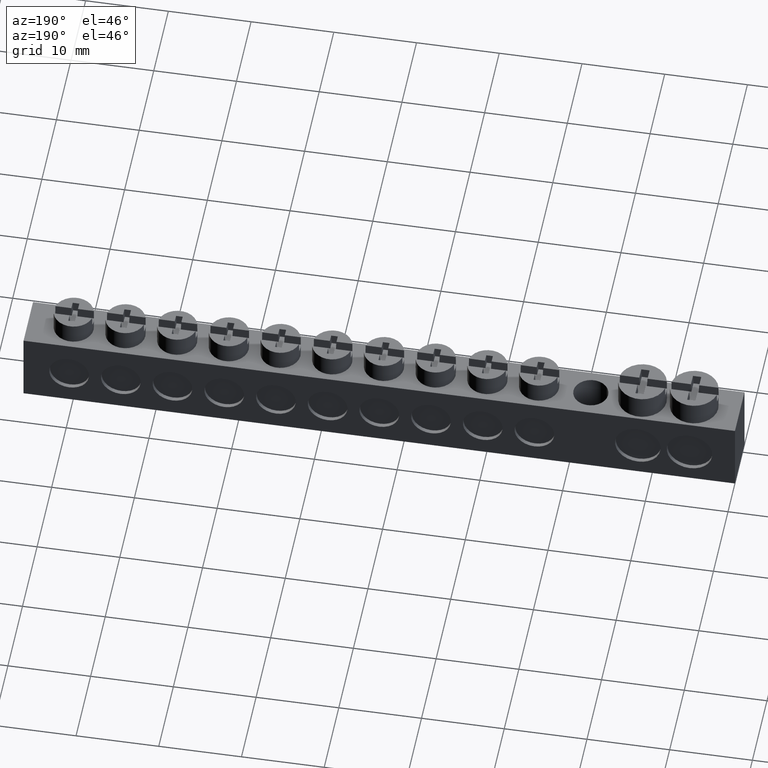
[diagram: clean part render]
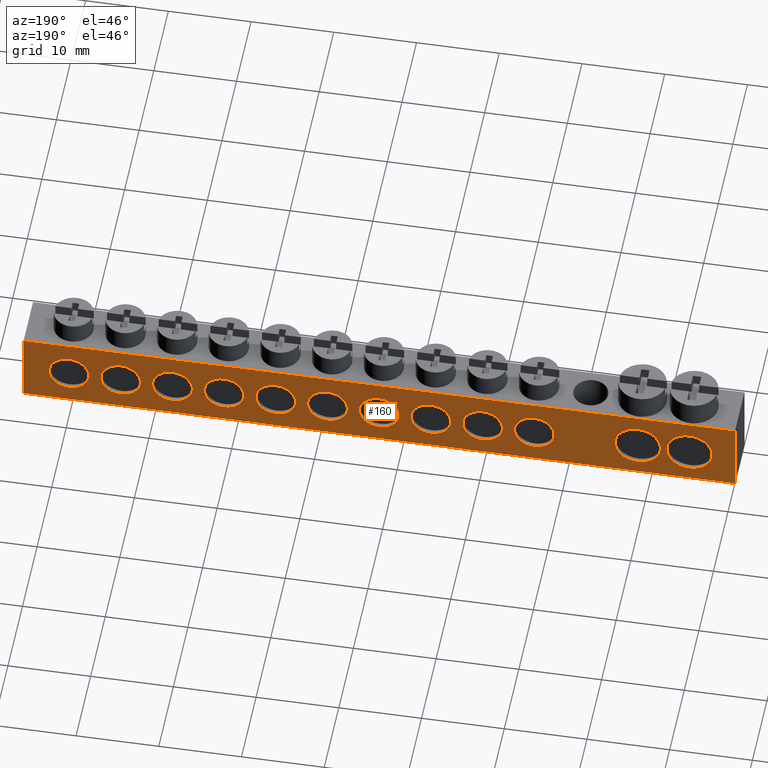
[diagram: same view with one face highlighted and labeled with its STEP entity id]
A machine part, auxiliary view. The second image highlights one B-rep face of the part: STEP entity #160.
In plain terms, the highlighted planar face has unit normal (0, -1, 0).
Its self-contained STEP definition (entity closure, byte-faithful):
#6 = EDGE_CURVE ( 'NONE', #7690, #7008, #508, .T. ) ;
#27 = EDGE_CURVE ( 'NONE', #7678, #7010, #545, .T. ) ;
#39 = EDGE_CURVE ( 'NONE', #7008, #7678, #570, .T. ) ;
#58 = EDGE_CURVE ( 'NONE', #3932, #3954, #7470, .T. ) ;
#63 = EDGE_CURVE ( 'NONE', #7690, #7010, #647, .T. ) ;
#66 = EDGE_CURVE ( 'NONE', #3924, #3946, #7590, .T. ) ;
#67 = EDGE_CURVE ( 'NONE', #3952, #3930, #7579, .T. ) ;
#73 = EDGE_CURVE ( 'NONE', #3979, #3985, #7578, .T. ) ;
#82 = EDGE_CURVE ( 'NONE', #3940, #3983, #7613, .T. ) ;
#87 = EDGE_CURVE ( 'NONE', #3934, #3968, #7576, .T. ) ;
#90 = EDGE_CURVE ( 'NONE', #3388, #3363, #7633, .T. ) ;
#105 = EDGE_CURVE ( 'NONE', #3923, #3958, #7733, .T. ) ;
#116 = EDGE_CURVE ( 'NONE', #3973, #3931, #7720, .T. ) ;
#117 = EDGE_CURVE ( 'NONE', #3944, #3941, #7742, .T. ) ;
#118 = EDGE_CURVE ( 'NONE', #3385, #3344, #7744, .T. ) ;
#125 = EDGE_CURVE ( 'NONE', #3947, #3945, #7679, .T. ) ;
#160 = ADVANCED_FACE ( 'NONE', ( #1087, #1089, #1070, #1083, #1091, #1068, #1092, #1093, #1067, #1095, #1073, #1097, #1077 ), #1055, .F. ) ;
#452 = EDGE_LOOP ( 'NONE', ( #3496, #3550 ) ) ;
#464 = EDGE_LOOP ( 'NONE', ( #3521, #3514, #3595, #3581 ) ) ;
#468 = EDGE_LOOP ( 'NONE', ( #3515, #3495 ) ) ;
#473 = CARTESIAN_POINT ( 'NONE',  ( 0.0000000000000000000, 6.499999999999999100, 9.000000000000001800 ) ) ;
#503 = DIRECTION ( 'NONE',  ( -1.000000000000000000, -1.013865269419524900E-017, -0.0000000000000000000 ) ) ;
#508 = LINE ( 'NONE', #473, #8021 ) ;
#543 = CARTESIAN_POINT ( 'NONE',  ( 0.0000000000000000000, 6.499999999999999100, 0.0000000000000000000 ) ) ;
#545 = LINE ( 'NONE', #543, #7550 ) ;
#546 = DIRECTION ( 'NONE',  ( 1.000000000000000000, -0.0000000000000000000, 0.0000000000000000000 ) ) ;
#570 = LINE ( 'NONE', #586, #7489 ) ;
#574 = DIRECTION ( 'NONE',  ( 0.0000000000000000000, 0.0000000000000000000, -1.000000000000000000 ) ) ;
#586 = CARTESIAN_POINT ( 'NONE',  ( -0.2250000000000000100, 6.499999999999999100, 9.000000000000001800 ) ) ;
#638 = DIRECTION ( 'NONE',  ( 0.0000000000000000000, 0.0000000000000000000, -1.000000000000000000 ) ) ;
#640 = CARTESIAN_POINT ( 'NONE',  ( 85.77500000000000600, 6.500000000000000000, 9.000000000000001800 ) ) ;
#647 = LINE ( 'NONE', #640, #7588 ) ;
#650 = CARTESIAN_POINT ( 'NONE',  ( 80.27500000000002000, 6.500000000000000900, 4.399999999999999500 ) ) ;
#651 = DIRECTION ( 'NONE',  ( 0.0000000000000000000, 0.0000000000000000000, -1.000000000000000000 ) ) ;
#654 = CARTESIAN_POINT ( 'NONE',  ( 24.02500000000001300, 6.499999999999999100, 4.399999999999868000 ) ) ;
#658 = CARTESIAN_POINT ( 'NONE',  ( 74.02500000000000600, 6.500000000000000900, 4.399999999999984400 ) ) ;
#659 = DIRECTION ( 'NONE',  ( 0.0000000000000000000, 1.000000000000000000, 0.0000000000000000000 ) ) ;
#661 = DIRECTION ( 'NONE',  ( 0.0000000000000000000, 1.000000000000000000, 0.0000000000000000000 ) ) ;
#662 = DIRECTION ( 'NONE',  ( 0.0000000000000000000, 0.0000000000000000000, -1.000000000000000000 ) ) ;
#663 = DIRECTION ( 'NONE',  ( 0.0000000000000000000, 0.0000000000000000000, -1.000000000000000000 ) ) ;
#673 = DIRECTION ( 'NONE',  ( 0.0000000000000000000, 1.000000000000000000, 0.0000000000000000000 ) ) ;
#674 = CARTESIAN_POINT ( 'NONE',  ( 55.27500000000000600, 6.499999999999999100, 4.399999999999940800 ) ) ;
#679 = DIRECTION ( 'NONE',  ( 0.0000000000000000000, 1.000000000000000000, 0.0000000000000000000 ) ) ;
#698 = DIRECTION ( 'NONE',  ( 0.0000000000000000000, 0.0000000000000000000, -1.000000000000000000 ) ) ;
#719 = CARTESIAN_POINT ( 'NONE',  ( 11.52500000000000000, 6.499999999999999100, 4.399999999999999500 ) ) ;
#723 = DIRECTION ( 'NONE',  ( 0.0000000000000000000, 0.0000000000000000000, -1.000000000000000000 ) ) ;
#727 = DIRECTION ( 'NONE',  ( 0.0000000000000000000, 1.000000000000000000, 0.0000000000000000000 ) ) ;
#733 = CARTESIAN_POINT ( 'NONE',  ( 36.52500000000000600, 6.499999999999999100, 4.399999999999898200 ) ) ;
#735 = DIRECTION ( 'NONE',  ( 0.0000000000000000000, 1.000000000000000000, 0.0000000000000000000 ) ) ;
#736 = DIRECTION ( 'NONE',  ( 0.0000000000000000000, 0.0000000000000000000, -1.000000000000000000 ) ) ;
#748 = CARTESIAN_POINT ( 'NONE',  ( 42.77500000000000600, 6.499999999999999100, 4.399999999999911500 ) ) ;
#755 = DIRECTION ( 'NONE',  ( 0.0000000000000000000, 1.000000000000000000, 0.0000000000000000000 ) ) ;
#756 = DIRECTION ( 'NONE',  ( 0.0000000000000000000, 0.0000000000000000000, -1.000000000000000000 ) ) ;
#805 = CARTESIAN_POINT ( 'NONE',  ( 30.27500000000000900, 6.499999999999999100, 4.399999999999883100 ) ) ;
#831 = DIRECTION ( 'NONE',  ( 0.0000000000000000000, 1.000000000000000000, 0.0000000000000000000 ) ) ;
#843 = DIRECTION ( 'NONE',  ( 0.0000000000000000000, 0.0000000000000000000, -1.000000000000000000 ) ) ;
#855 = DIRECTION ( 'NONE',  ( 0.0000000000000000000, 1.000000000000000000, 0.0000000000000000000 ) ) ;
#856 = DIRECTION ( 'NONE',  ( 0.0000000000000000000, 0.0000000000000000000, -1.000000000000000000 ) ) ;
#861 = DIRECTION ( 'NONE',  ( 0.0000000000000000000, 1.000000000000000000, 0.0000000000000000000 ) ) ;
#862 = CARTESIAN_POINT ( 'NONE',  ( 49.02500000000000600, 6.499999999999999100, 4.399999999999926600 ) ) ;
#867 = CARTESIAN_POINT ( 'NONE',  ( 61.52500000000001300, 6.499999999999999100, 4.399999999999955900 ) ) ;
#870 = DIRECTION ( 'NONE',  ( 0.0000000000000000000, 0.0000000000000000000, -1.000000000000000000 ) ) ;
#874 = DIRECTION ( 'NONE',  ( 0.0000000000000000000, 0.0000000000000000000, -1.000000000000000000 ) ) ;
#878 = CARTESIAN_POINT ( 'NONE',  ( 5.275000000000000400, 6.499999999999999100, 4.399999999999999500 ) ) ;
#887 = DIRECTION ( 'NONE',  ( 0.0000000000000000000, 0.0000000000000000000, -1.000000000000000000 ) ) ;
#890 = DIRECTION ( 'NONE',  ( 0.0000000000000000000, 1.000000000000000000, 0.0000000000000000000 ) ) ;
#891 = CARTESIAN_POINT ( 'NONE',  ( 67.77500000000000600, 6.500000000000000900, 4.399999999999970200 ) ) ;
#894 = DIRECTION ( 'NONE',  ( 0.0000000000000000000, 1.000000000000000000, 0.0000000000000000000 ) ) ;
#1055 = PLANE ( 'NONE',  #7776 ) ;
#1058 = DIRECTION ( 'NONE',  ( 1.000000000000000000, 1.013865269419524900E-017, 0.0000000000000000000 ) ) ;
#1064 = CARTESIAN_POINT ( 'NONE',  ( 0.0000000000000000000, 6.499999999999999100, 9.000000000000001800 ) ) ;
#1067 = FACE_BOUND ( 'NONE', #1435, .T. ) ;
#1068 = FACE_BOUND ( 'NONE', #1463, .T. ) ;
#1070 = FACE_BOUND ( 'NONE', #1432, .T. ) ;
#1073 = FACE_BOUND ( 'NONE', #1480, .T. ) ;
#1077 = FACE_BOUND ( 'NONE', #1447, .T. ) ;
#1083 = FACE_BOUND ( 'NONE', #1425, .T. ) ;
#1087 = FACE_OUTER_BOUND ( 'NONE', #464, .T. ) ;
#1089 = FACE_BOUND ( 'NONE', #1453, .T. ) ;
#1091 = FACE_BOUND ( 'NONE', #1475, .T. ) ;
#1092 = FACE_BOUND ( 'NONE', #452, .T. ) ;
#1093 = FACE_BOUND ( 'NONE', #1465, .T. ) ;
#1095 = FACE_BOUND ( 'NONE', #468, .T. ) ;
#1097 = FACE_BOUND ( 'NONE', #1481, .T. ) ;
#1098 = DIRECTION ( 'NONE',  ( 1.013865269419524900E-017, -1.000000000000000000, 0.0000000000000000000 ) ) ;
#1425 = EDGE_LOOP ( 'NONE', ( #3513, #3564 ) ) ;
#1432 = EDGE_LOOP ( 'NONE', ( #3517, #3597 ) ) ;
#1435 = EDGE_LOOP ( 'NONE', ( #3491, #3473 ) ) ;
#1447 = EDGE_LOOP ( 'NONE', ( #3516, #3472 ) ) ;
#1453 = EDGE_LOOP ( 'NONE', ( #3502, #3569 ) ) ;
#1463 = EDGE_LOOP ( 'NONE', ( #3508, #3490 ) ) ;
#1465 = EDGE_LOOP ( 'NONE', ( #3536, #3494 ) ) ;
#1475 = EDGE_LOOP ( 'NONE', ( #3522, #3511 ) ) ;
#1480 = EDGE_LOOP ( 'NONE', ( #3506, #3531 ) ) ;
#1481 = EDGE_LOOP ( 'NONE', ( #3533, #3524 ) ) ;
#1490 = EDGE_CURVE ( 'NONE', #3968, #3934, #2812, .T. ) ;
#1491 = EDGE_CURVE ( 'NONE', #3985, #3979, #2796, .T. ) ;
#1500 = EDGE_CURVE ( 'NONE', #3946, #3924, #2784, .T. ) ;
#1502 = EDGE_CURVE ( 'NONE', #3945, #3947, #2786, .T. ) ;
#1507 = EDGE_CURVE ( 'NONE', #3941, #3944, #2803, .T. ) ;
#2211 = DIRECTION ( 'NONE',  ( 0.0000000000000000000, 0.0000000000000000000, -1.000000000000000000 ) ) ;
#2213 = CARTESIAN_POINT ( 'NONE',  ( 67.77500000000000600, 6.500000000000000900, 4.399999999999970200 ) ) ;
#2221 = DIRECTION ( 'NONE',  ( 0.0000000000000000000, 1.000000000000000000, 0.0000000000000000000 ) ) ;
#2288 = CARTESIAN_POINT ( 'NONE',  ( 85.77500000000000600, 6.499999999999999100, 0.0000000000000000000 ) ) ;
#2317 = CARTESIAN_POINT ( 'NONE',  ( -0.2250000000000000100, 6.499999999999999100, 9.000000000000001800 ) ) ;
#2453 = CIRCLE ( 'NONE', #2482, 2.400000000000000800 ) ;
#2482 = AXIS2_PLACEMENT_3D ( 'NONE', #2213, #2221, #2211 ) ;
#2765 = AXIS2_PLACEMENT_3D ( 'NONE', #5195, #5215, #5191 ) ;
#2767 = AXIS2_PLACEMENT_3D ( 'NONE', #5222, #5268, #5272 ) ;
#2782 = AXIS2_PLACEMENT_3D ( 'NONE', #5194, #5224, #5225 ) ;
#2784 = CIRCLE ( 'NONE', #2794, 2.400000000000000800 ) ;
#2786 = CIRCLE ( 'NONE', #2767, 2.400000000000000800 ) ;
#2794 = AXIS2_PLACEMENT_3D ( 'NONE', #5212, #5221, #5223 ) ;
#2796 = CIRCLE ( 'NONE', #2765, 2.400000000000000800 ) ;
#2803 = CIRCLE ( 'NONE', #2807, 2.400000000000007900 ) ;
#2807 = AXIS2_PLACEMENT_3D ( 'NONE', #5237, #5230, #5233 ) ;
#2812 = CIRCLE ( 'NONE', #2782, 2.400000000000000800 ) ;
#2832 = CIRCLE ( 'NONE', #2869, 2.749999999999998200 ) ;
#2869 = AXIS2_PLACEMENT_3D ( 'NONE', #5288, #5307, #5313 ) ;
#2937 = CIRCLE ( 'NONE', #2991, 2.400000000000000800 ) ;
#2939 = AXIS2_PLACEMENT_3D ( 'NONE', #6636, #6635, #6637 ) ;
#2945 = AXIS2_PLACEMENT_3D ( 'NONE', #6655, #6663, #6651 ) ;
#2962 = CIRCLE ( 'NONE', #2972, 2.749999999999998200 ) ;
#2972 = AXIS2_PLACEMENT_3D ( 'NONE', #6653, #6659, #6662 ) ;
#2974 = CIRCLE ( 'NONE', #2945, 2.400000000000000800 ) ;
#2982 = CIRCLE ( 'NONE', #2994, 2.400000000000000800 ) ;
#2991 = AXIS2_PLACEMENT_3D ( 'NONE', #6585, #6584, #6602 ) ;
#2992 = CIRCLE ( 'NONE', #2939, 2.400000000000000800 ) ;
#2994 = AXIS2_PLACEMENT_3D ( 'NONE', #6672, #6691, #6673 ) ;
#3002 = EDGE_CURVE ( 'NONE', #3344, #3385, #2832, .T. ) ;
#3344 = VERTEX_POINT ( 'NONE', #6366 ) ;
#3363 = VERTEX_POINT ( 'NONE', #6375 ) ;
#3385 = VERTEX_POINT ( 'NONE', #6335 ) ;
#3388 = VERTEX_POINT ( 'NONE', #6351 ) ;
#3472 = ORIENTED_EDGE ( 'NONE', *, *, #58, .F. ) ;
#3473 = ORIENTED_EDGE ( 'NONE', *, *, #125, .F. ) ;
#3490 = ORIENTED_EDGE ( 'NONE', *, *, #116, .F. ) ;
#3491 = ORIENTED_EDGE ( 'NONE', *, *, #1502, .F. ) ;
#3494 = ORIENTED_EDGE ( 'NONE', *, *, #73, .F. ) ;
#3495 = ORIENTED_EDGE ( 'NONE', *, *, #82, .F. ) ;
#3496 = ORIENTED_EDGE ( 'NONE', *, *, #1507, .F. ) ;
#3502 = ORIENTED_EDGE ( 'NONE', *, *, #3002, .F. ) ;
#3506 = ORIENTED_EDGE ( 'NONE', *, *, #1490, .F. ) ;
#3508 = ORIENTED_EDGE ( 'NONE', *, *, #6109, .F. ) ;
#3511 = ORIENTED_EDGE ( 'NONE', *, *, #67, .F. ) ;
#3513 = ORIENTED_EDGE ( 'NONE', *, *, #1500, .F. ) ;
#3514 = ORIENTED_EDGE ( 'NONE', *, *, #6, .F. ) ;
#3515 = ORIENTED_EDGE ( 'NONE', *, *, #4492, .F. ) ;
#3516 = ORIENTED_EDGE ( 'NONE', *, *, #4517, .F. ) ;
#3517 = ORIENTED_EDGE ( 'NONE', *, *, #4521, .F. ) ;
#3521 = ORIENTED_EDGE ( 'NONE', *, *, #39, .F. ) ;
#3522 = ORIENTED_EDGE ( 'NONE', *, *, #4525, .F. ) ;
#3524 = ORIENTED_EDGE ( 'NONE', *, *, #105, .F. ) ;
#3531 = ORIENTED_EDGE ( 'NONE', *, *, #87, .F. ) ;
#3533 = ORIENTED_EDGE ( 'NONE', *, *, #4511, .F. ) ;
#3536 = ORIENTED_EDGE ( 'NONE', *, *, #1491, .F. ) ;
#3550 = ORIENTED_EDGE ( 'NONE', *, *, #117, .F. ) ;
#3564 = ORIENTED_EDGE ( 'NONE', *, *, #66, .F. ) ;
#3569 = ORIENTED_EDGE ( 'NONE', *, *, #118, .F. ) ;
#3581 = ORIENTED_EDGE ( 'NONE', *, *, #27, .F. ) ;
#3595 = ORIENTED_EDGE ( 'NONE', *, *, #63, .T. ) ;
#3597 = ORIENTED_EDGE ( 'NONE', *, *, #90, .F. ) ;
#3923 = VERTEX_POINT ( 'NONE', #6490 ) ;
#3924 = VERTEX_POINT ( 'NONE', #6462 ) ;
#3930 = VERTEX_POINT ( 'NONE', #6506 ) ;
#3931 = VERTEX_POINT ( 'NONE', #6504 ) ;
#3932 = VERTEX_POINT ( 'NONE', #6482 ) ;
#3934 = VERTEX_POINT ( 'NONE', #6498 ) ;
#3940 = VERTEX_POINT ( 'NONE', #6509 ) ;
#3941 = VERTEX_POINT ( 'NONE', #6500 ) ;
#3944 = VERTEX_POINT ( 'NONE', #6480 ) ;
#3945 = VERTEX_POINT ( 'NONE', #6496 ) ;
#3946 = VERTEX_POINT ( 'NONE', #6501 ) ;
#3947 = VERTEX_POINT ( 'NONE', #6491 ) ;
#3952 = VERTEX_POINT ( 'NONE', #6485 ) ;
#3954 = VERTEX_POINT ( 'NONE', #6466 ) ;
#3958 = VERTEX_POINT ( 'NONE', #6471 ) ;
#3968 = VERTEX_POINT ( 'NONE', #6528 ) ;
#3973 = VERTEX_POINT ( 'NONE', #6552 ) ;
#3979 = VERTEX_POINT ( 'NONE', #6558 ) ;
#3983 = VERTEX_POINT ( 'NONE', #6547 ) ;
#3985 = VERTEX_POINT ( 'NONE', #6553 ) ;
#4492 = EDGE_CURVE ( 'NONE', #3983, #3940, #2937, .T. ) ;
#4511 = EDGE_CURVE ( 'NONE', #3958, #3923, #2992, .T. ) ;
#4517 = EDGE_CURVE ( 'NONE', #3954, #3932, #2974, .T. ) ;
#4521 = EDGE_CURVE ( 'NONE', #3363, #3388, #2962, .T. ) ;
#4525 = EDGE_CURVE ( 'NONE', #3930, #3952, #2982, .T. ) ;
#5191 = DIRECTION ( 'NONE',  ( 0.0000000000000000000, 0.0000000000000000000, -1.000000000000000000 ) ) ;
#5194 = CARTESIAN_POINT ( 'NONE',  ( 36.52500000000000600, 6.499999999999999100, 4.399999999999898200 ) ) ;
#5195 = CARTESIAN_POINT ( 'NONE',  ( 55.27500000000000600, 6.499999999999999100, 4.399999999999940800 ) ) ;
#5212 = CARTESIAN_POINT ( 'NONE',  ( 80.27500000000002000, 6.500000000000000900, 4.399999999999999500 ) ) ;
#5215 = DIRECTION ( 'NONE',  ( 0.0000000000000000000, 1.000000000000000000, 0.0000000000000000000 ) ) ;
#5221 = DIRECTION ( 'NONE',  ( 0.0000000000000000000, 1.000000000000000000, 0.0000000000000000000 ) ) ;
#5222 = CARTESIAN_POINT ( 'NONE',  ( 49.02500000000000600, 6.499999999999999100, 4.399999999999926600 ) ) ;
#5223 = DIRECTION ( 'NONE',  ( 0.0000000000000000000, 0.0000000000000000000, -1.000000000000000000 ) ) ;
#5224 = DIRECTION ( 'NONE',  ( 0.0000000000000000000, 1.000000000000000000, 0.0000000000000000000 ) ) ;
#5225 = DIRECTION ( 'NONE',  ( 0.0000000000000000000, 0.0000000000000000000, -1.000000000000000000 ) ) ;
#5230 = DIRECTION ( 'NONE',  ( 0.0000000000000000000, 1.000000000000000000, 0.0000000000000000000 ) ) ;
#5233 = DIRECTION ( 'NONE',  ( 0.0000000000000000000, 0.0000000000000000000, -1.000000000000000000 ) ) ;
#5237 = CARTESIAN_POINT ( 'NONE',  ( 61.52500000000001300, 6.499999999999999100, 4.399999999999955900 ) ) ;
#5268 = DIRECTION ( 'NONE',  ( 0.0000000000000000000, 1.000000000000000000, 0.0000000000000000000 ) ) ;
#5272 = DIRECTION ( 'NONE',  ( 0.0000000000000000000, 0.0000000000000000000, -1.000000000000000000 ) ) ;
#5288 = CARTESIAN_POINT ( 'NONE',  ( 5.275000000000000400, 6.499999999999999100, 4.399999999999999500 ) ) ;
#5307 = DIRECTION ( 'NONE',  ( 0.0000000000000000000, 1.000000000000000000, 0.0000000000000000000 ) ) ;
#5313 = DIRECTION ( 'NONE',  ( 0.0000000000000000000, 0.0000000000000000000, -1.000000000000000000 ) ) ;
#5798 = CARTESIAN_POINT ( 'NONE',  ( 85.77500000000000600, 6.500000000000000000, 9.000000000000001800 ) ) ;
#5811 = CARTESIAN_POINT ( 'NONE',  ( -0.2250000000000000100, 6.499999999999999100, 0.0000000000000000000 ) ) ;
#6109 = EDGE_CURVE ( 'NONE', #3931, #3973, #2453, .T. ) ;
#6335 = CARTESIAN_POINT ( 'NONE',  ( 5.275000000000000400, 6.499999999999999100, 7.149999999999997700 ) ) ;
#6351 = CARTESIAN_POINT ( 'NONE',  ( 11.52500000000000000, 6.499999999999999100, 7.149999999999997700 ) ) ;
#6366 = CARTESIAN_POINT ( 'NONE',  ( 5.275000000000000400, 6.499999999999999100, 1.650000000000001200 ) ) ;
#6375 = CARTESIAN_POINT ( 'NONE',  ( 11.52500000000000000, 6.499999999999999100, 1.650000000000001200 ) ) ;
#6462 = CARTESIAN_POINT ( 'NONE',  ( 80.27500000000002000, 6.500000000000000900, 6.800000000000000700 ) ) ;
#6466 = CARTESIAN_POINT ( 'NONE',  ( 24.02500000000001300, 6.499999999999999100, 1.999999999999867700 ) ) ;
#6471 = CARTESIAN_POINT ( 'NONE',  ( 30.27500000000000900, 6.499999999999999100, 1.999999999999882500 ) ) ;
#6480 = CARTESIAN_POINT ( 'NONE',  ( 61.52500000000001300, 6.499999999999999100, 6.799999999999964300 ) ) ;
#6482 = CARTESIAN_POINT ( 'NONE',  ( 24.02500000000001300, 6.499999999999999100, 6.799999999999868400 ) ) ;
#6485 = CARTESIAN_POINT ( 'NONE',  ( 74.02500000000000600, 6.500000000000000900, 6.799999999999984700 ) ) ;
#6490 = CARTESIAN_POINT ( 'NONE',  ( 30.27500000000000900, 6.499999999999999100, 6.799999999999884400 ) ) ;
#6491 = CARTESIAN_POINT ( 'NONE',  ( 49.02500000000000600, 6.499999999999999100, 6.799999999999927900 ) ) ;
#6496 = CARTESIAN_POINT ( 'NONE',  ( 49.02500000000000600, 6.499999999999999100, 1.999999999999925800 ) ) ;
#6498 = CARTESIAN_POINT ( 'NONE',  ( 36.52500000000000600, 6.499999999999999100, 6.799999999999898600 ) ) ;
#6500 = CARTESIAN_POINT ( 'NONE',  ( 61.52500000000001300, 6.499999999999999100, 1.999999999999948000 ) ) ;
#6501 = CARTESIAN_POINT ( 'NONE',  ( 80.27500000000002000, 6.500000000000000900, 1.999999999999998700 ) ) ;
#6504 = CARTESIAN_POINT ( 'NONE',  ( 67.77500000000000600, 6.500000000000000900, 1.999999999999969400 ) ) ;
#6506 = CARTESIAN_POINT ( 'NONE',  ( 74.02500000000000600, 6.500000000000000900, 1.999999999999984000 ) ) ;
#6509 = CARTESIAN_POINT ( 'NONE',  ( 42.77500000000000600, 6.499999999999999100, 6.799999999999911900 ) ) ;
#6528 = CARTESIAN_POINT ( 'NONE',  ( 36.52500000000000600, 6.499999999999999100, 1.999999999999897200 ) ) ;
#6547 = CARTESIAN_POINT ( 'NONE',  ( 42.77500000000000600, 6.499999999999999100, 1.999999999999911200 ) ) ;
#6552 = CARTESIAN_POINT ( 'NONE',  ( 67.77500000000000600, 6.500000000000000900, 6.799999999999971400 ) ) ;
#6553 = CARTESIAN_POINT ( 'NONE',  ( 55.27500000000000600, 6.499999999999999100, 1.999999999999940700 ) ) ;
#6558 = CARTESIAN_POINT ( 'NONE',  ( 55.27500000000000600, 6.499999999999999100, 6.799999999999941200 ) ) ;
#6584 = DIRECTION ( 'NONE',  ( 0.0000000000000000000, 1.000000000000000000, 0.0000000000000000000 ) ) ;
#6585 = CARTESIAN_POINT ( 'NONE',  ( 42.77500000000000600, 6.499999999999999100, 4.399999999999911500 ) ) ;
#6602 = DIRECTION ( 'NONE',  ( 0.0000000000000000000, 0.0000000000000000000, -1.000000000000000000 ) ) ;
#6635 = DIRECTION ( 'NONE',  ( 0.0000000000000000000, 1.000000000000000000, 0.0000000000000000000 ) ) ;
#6636 = CARTESIAN_POINT ( 'NONE',  ( 30.27500000000000900, 6.499999999999999100, 4.399999999999883100 ) ) ;
#6637 = DIRECTION ( 'NONE',  ( 0.0000000000000000000, 0.0000000000000000000, -1.000000000000000000 ) ) ;
#6651 = DIRECTION ( 'NONE',  ( 0.0000000000000000000, 0.0000000000000000000, -1.000000000000000000 ) ) ;
#6653 = CARTESIAN_POINT ( 'NONE',  ( 11.52500000000000000, 6.499999999999999100, 4.399999999999999500 ) ) ;
#6655 = CARTESIAN_POINT ( 'NONE',  ( 24.02500000000001300, 6.499999999999999100, 4.399999999999868000 ) ) ;
#6659 = DIRECTION ( 'NONE',  ( 0.0000000000000000000, 1.000000000000000000, 0.0000000000000000000 ) ) ;
#6662 = DIRECTION ( 'NONE',  ( 0.0000000000000000000, 0.0000000000000000000, -1.000000000000000000 ) ) ;
#6663 = DIRECTION ( 'NONE',  ( 0.0000000000000000000, 1.000000000000000000, 0.0000000000000000000 ) ) ;
#6672 = CARTESIAN_POINT ( 'NONE',  ( 74.02500000000000600, 6.500000000000000900, 4.399999999999984400 ) ) ;
#6673 = DIRECTION ( 'NONE',  ( 0.0000000000000000000, 0.0000000000000000000, -1.000000000000000000 ) ) ;
#6691 = DIRECTION ( 'NONE',  ( 0.0000000000000000000, 1.000000000000000000, 0.0000000000000000000 ) ) ;
#7008 = VERTEX_POINT ( 'NONE', #2317 ) ;
#7010 = VERTEX_POINT ( 'NONE', #2288 ) ;
#7470 = CIRCLE ( 'NONE', #7474, 2.400000000000000800 ) ;
#7474 = AXIS2_PLACEMENT_3D ( 'NONE', #654, #659, #638 ) ;
#7489 = VECTOR ( 'NONE', #574, 1000.000000000000000 ) ;
#7550 = VECTOR ( 'NONE', #546, 1000.000000000000000 ) ;
#7559 = AXIS2_PLACEMENT_3D ( 'NONE', #658, #661, #662 ) ;
#7561 = AXIS2_PLACEMENT_3D ( 'NONE', #650, #673, #663 ) ;
#7565 = AXIS2_PLACEMENT_3D ( 'NONE', #748, #727, #723 ) ;
#7576 = CIRCLE ( 'NONE', #7657, 2.400000000000000800 ) ;
#7578 = CIRCLE ( 'NONE', #7592, 2.400000000000000800 ) ;
#7579 = CIRCLE ( 'NONE', #7559, 2.400000000000000800 ) ;
#7588 = VECTOR ( 'NONE', #651, 1000.000000000000000 ) ;
#7590 = CIRCLE ( 'NONE', #7561, 2.400000000000000800 ) ;
#7592 = AXIS2_PLACEMENT_3D ( 'NONE', #674, #679, #698 ) ;
#7613 = CIRCLE ( 'NONE', #7565, 2.400000000000000800 ) ;
#7628 = AXIS2_PLACEMENT_3D ( 'NONE', #719, #755, #756 ) ;
#7633 = CIRCLE ( 'NONE', #7628, 2.749999999999998200 ) ;
#7657 = AXIS2_PLACEMENT_3D ( 'NONE', #733, #735, #736 ) ;
#7678 = VERTEX_POINT ( 'NONE', #5811 ) ;
#7679 = CIRCLE ( 'NONE', #7745, 2.400000000000000800 ) ;
#7690 = VERTEX_POINT ( 'NONE', #5798 ) ;
#7709 = AXIS2_PLACEMENT_3D ( 'NONE', #891, #890, #870 ) ;
#7720 = CIRCLE ( 'NONE', #7709, 2.400000000000000800 ) ;
#7726 = AXIS2_PLACEMENT_3D ( 'NONE', #805, #831, #843 ) ;
#7731 = AXIS2_PLACEMENT_3D ( 'NONE', #878, #861, #874 ) ;
#7733 = CIRCLE ( 'NONE', #7726, 2.400000000000000800 ) ;
#7742 = CIRCLE ( 'NONE', #7747, 2.400000000000007900 ) ;
#7744 = CIRCLE ( 'NONE', #7731, 2.749999999999998200 ) ;
#7745 = AXIS2_PLACEMENT_3D ( 'NONE', #862, #855, #856 ) ;
#7747 = AXIS2_PLACEMENT_3D ( 'NONE', #867, #894, #887 ) ;
#7776 = AXIS2_PLACEMENT_3D ( 'NONE', #1064, #1098, #1058 ) ;
#8021 = VECTOR ( 'NONE', #503, 1000.000000000000000 ) ;